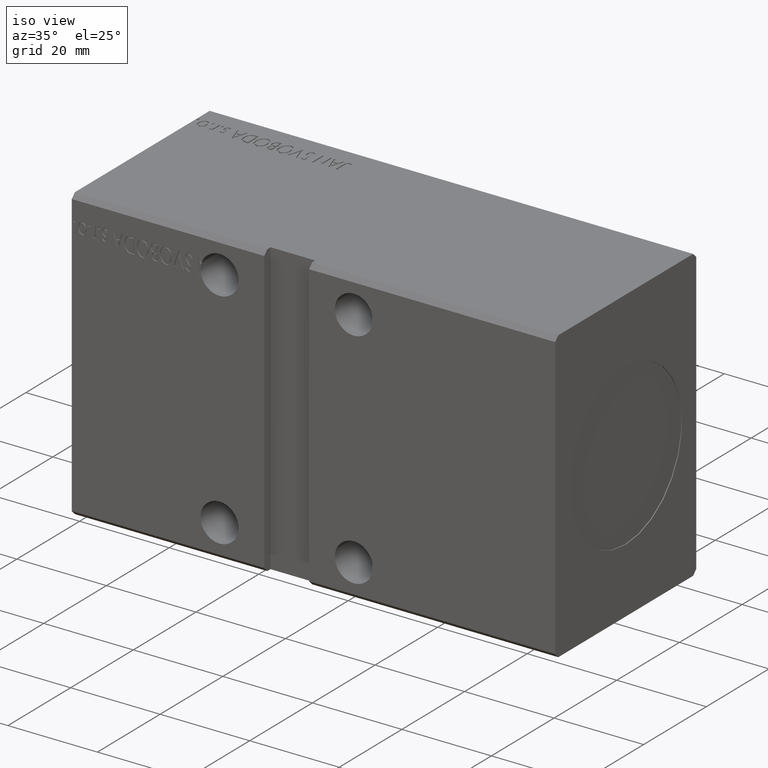
[diagram: clean part render]
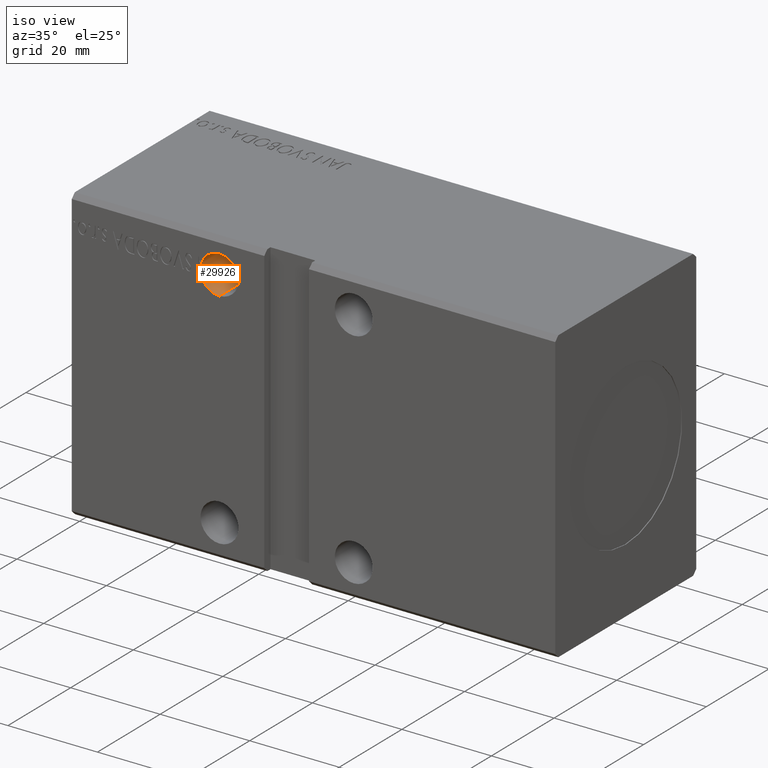
[diagram: same view with one face highlighted and labeled with its STEP entity id]
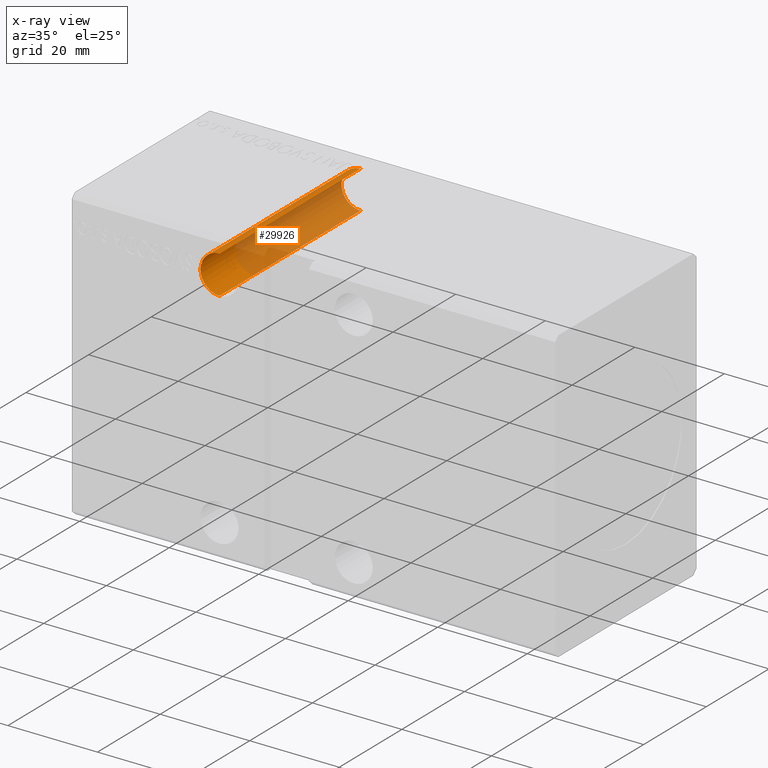
[diagram: x-ray of the same camera — body ghosted, the highlighted face saturated]
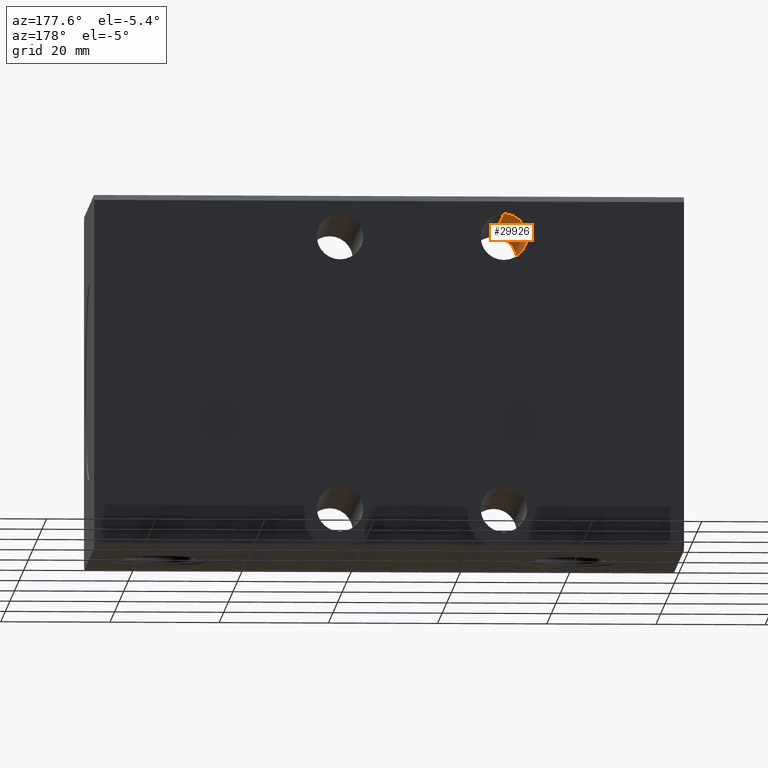
[diagram: same view with one face highlighted and labeled with its STEP entity id]
A machine part, iso view. The second image highlights one B-rep face of the part: STEP entity #29926.
The next image is the same camera in x-ray: the body ghosted, the highlighted face saturated — about 66% of this face is hidden behind the body in this view.
A second angle (auxiliary view) of the same face is appended — the face is thin or edge-on in the first view.
In plain terms, the highlighted cylindrical surface (edge-blend (fillet) strip) has radius 4.25 mm, axis along (-0, -1, -0).
Its self-contained STEP definition (entity closure, byte-faithful):
#209 = ORIENTED_EDGE ( 'NONE', *, *, #22713, .F. ) ;
#1056 = CIRCLE ( 'NONE', #31526, 4.250000000000003553 ) ;
#1215 = CARTESIAN_POINT ( 'NONE',  ( 32.99999999999998579, -22.29999999999999361, 25.00000000000000000 ) ) ;
#1845 = CARTESIAN_POINT ( 'NONE',  ( 28.88747877458902735, -22.50000000000000000, 26.07222626835214285 ) ) ;
#3090 = ORIENTED_EDGE ( 'NONE', *, *, #30625, .T. ) ;
#3674 = DIRECTION ( 'NONE',  ( 0.000000000000000000, 1.000000000000000000, 0.000000000000000000 ) ) ;
#3719 = DIRECTION ( 'NONE',  ( 0.000000000000000000, 0.000000000000000000, 1.000000000000000000 ) ) ;
#3758 = CARTESIAN_POINT ( 'NONE',  ( 32.99999999999998579, 22.50000000000001421, 20.75000000000000000 ) ) ;
#4377 = CARTESIAN_POINT ( 'NONE',  ( 32.99999999999998579, -22.50000000000001421, 25.00000000000000000 ) ) ;
#4901 = VERTEX_POINT ( 'NONE', #1845 ) ;
#5609 = DIRECTION ( 'NONE',  ( -0.000000000000000000, -1.000000000000000000, -5.507058653894626469E-17 ) ) ;
#5859 = EDGE_CURVE ( 'NONE', #18098, #4901, #37529, .T. ) ;
#6178 = CARTESIAN_POINT ( 'NONE',  ( 32.99999999999998579, -22.50000000000001421, 29.25000000000000355 ) ) ;
#7448 = EDGE_CURVE ( 'NONE', #39820, #15143, #18950, .T. ) ;
#8329 = ORIENTED_EDGE ( 'NONE', *, *, #16233, .T. ) ;
#8781 = CARTESIAN_POINT ( 'NONE',  ( 32.99999999999998579, -22.50000000000001421, 20.74999999999999645 ) ) ;
#8820 = AXIS2_PLACEMENT_3D ( 'NONE', #26900, #39300, #30146 ) ;
#8869 = LINE ( 'NONE', #36285, #13302 ) ;
#8936 = ORIENTED_EDGE ( 'NONE', *, *, #17589, .F. ) ;
#10496 = ORIENTED_EDGE ( 'NONE', *, *, #33320, .F. ) ;
#10658 = DIRECTION ( 'NONE',  ( -0.000000000000000000, 1.000000000000000000, 5.507058653894626469E-17 ) ) ;
#12017 = VECTOR ( 'NONE', #39427, 1000.000000000000000 ) ;
#12497 = CARTESIAN_POINT ( 'NONE',  ( 32.99999999999998579, 22.50000000000001421, 20.75000000000000000 ) ) ;
#12699 = AXIS2_PLACEMENT_3D ( 'NONE', #4377, #10658, #23051 ) ;
#13302 = VECTOR ( 'NONE', #5609, 1000.000000000000000 ) ;
#14146 = CARTESIAN_POINT ( 'NONE',  ( 29.00726110345451403, -22.29999999999999361, 26.45620606509273287 ) ) ;
#14652 = CARTESIAN_POINT ( 'NONE',  ( 32.99999999999998579, 22.50000000000001421, 29.25000000000000711 ) ) ;
#15143 = VERTEX_POINT ( 'NONE', #14146 ) ;
#15318 = CIRCLE ( 'NONE', #8820, 4.250000000000003553 ) ;
#15341 = DIRECTION ( 'NONE',  ( -0.000000000000000000, -1.000000000000000000, -5.507058653894626469E-17 ) ) ;
#16233 = EDGE_CURVE ( 'NONE', #39021, #4901, #8869, .T. ) ;
#17185 = ORIENTED_EDGE ( 'NONE', *, *, #5859, .F. ) ;
#17589 = EDGE_CURVE ( 'NONE', #39820, #39079, #19198, .T. ) ;
#18098 = VERTEX_POINT ( 'NONE', #8781 ) ;
#18950 = LINE ( 'NONE', #31323, #36896 ) ;
#19157 = CARTESIAN_POINT ( 'NONE',  ( 32.99999999999998579, -22.50000000000001421, 25.00000000000000000 ) ) ;
#19198 = CIRCLE ( 'NONE', #12699, 4.250000000000003553 ) ;
#19491 = VERTEX_POINT ( 'NONE', #3758 ) ;
#20229 = DIRECTION ( 'NONE',  ( 0.000000000000000000, 0.000000000000000000, -1.000000000000000000 ) ) ;
#20438 = AXIS2_PLACEMENT_3D ( 'NONE', #29359, #23277, #20229 ) ;
#22483 = CARTESIAN_POINT ( 'NONE',  ( 32.99999999999998579, 22.50000000000001421, 29.25000000000000711 ) ) ;
#22713 = EDGE_CURVE ( 'NONE', #19491, #18098, #27937, .T. ) ;
#23051 = DIRECTION ( 'NONE',  ( 0.000000000000000000, 0.000000000000000000, 1.000000000000000000 ) ) ;
#23074 = CYLINDRICAL_SURFACE ( 'NONE', #20438, 4.250000000000003553 ) ;
#23277 = DIRECTION ( 'NONE',  ( -0.000000000000000000, -1.000000000000000000, -5.507058653894626469E-17 ) ) ;
#24404 = LINE ( 'NONE', #14652, #12017 ) ;
#25168 = ORIENTED_EDGE ( 'NONE', *, *, #7448, .T. ) ;
#25625 = DIRECTION ( 'NONE',  ( 0.000000000000000000, 1.000000000000000000, 5.507058653894626469E-17 ) ) ;
#25985 = DIRECTION ( 'NONE',  ( 0.000000000000000000, 0.000000000000000000, 1.000000000000000000 ) ) ;
#26900 = CARTESIAN_POINT ( 'NONE',  ( 32.99999999999998579, 22.50000000000001421, 25.00000000000000355 ) ) ;
#27733 = VERTEX_POINT ( 'NONE', #22483 ) ;
#27937 = LINE ( 'NONE', #12497, #30117 ) ;
#29359 = CARTESIAN_POINT ( 'NONE',  ( 32.99999999999998579, 22.50000000000001421, 25.00000000000000355 ) ) ;
#29600 = CARTESIAN_POINT ( 'NONE',  ( 29.00726110345451048, -22.50000000000000000, 26.45620606509273287 ) ) ;
#29926 = ADVANCED_FACE ( 'NONE', ( #38515 ), #23074, .F. ) ;
#30117 = VECTOR ( 'NONE', #15341, 1000.000000000000000 ) ;
#30141 = CARTESIAN_POINT ( 'NONE',  ( 28.88747877458902735, -22.29999999999999361, 26.07222626835214996 ) ) ;
#30146 = DIRECTION ( 'NONE',  ( 0.000000000000000000, 0.000000000000000000, -1.000000000000000000 ) ) ;
#30625 = EDGE_CURVE ( 'NONE', #27733, #39079, #24404, .T. ) ;
#31323 = CARTESIAN_POINT ( 'NONE',  ( 29.00726110345451048, 22.50000000000001421, 26.45620606509273642 ) ) ;
#31526 = AXIS2_PLACEMENT_3D ( 'NONE', #1215, #3674, #25985 ) ;
#31533 = DIRECTION ( 'NONE',  ( -0.000000000000000000, 1.000000000000000000, 5.507058653894626469E-17 ) ) ;
#32964 = AXIS2_PLACEMENT_3D ( 'NONE', #19157, #31533, #3719 ) ;
#33320 = EDGE_CURVE ( 'NONE', #27733, #19491, #15318, .T. ) ;
#33511 = EDGE_CURVE ( 'NONE', #39021, #15143, #1056, .T. ) ;
#34556 = EDGE_LOOP ( 'NONE', ( #10496, #3090, #8936, #25168, #37376, #8329, #17185, #209 ) ) ;
#36285 = CARTESIAN_POINT ( 'NONE',  ( 28.88747877458902735, 22.50000000000001421, 26.07222626835214641 ) ) ;
#36896 = VECTOR ( 'NONE', #25625, 1000.000000000000000 ) ;
#37376 = ORIENTED_EDGE ( 'NONE', *, *, #33511, .F. ) ;
#37529 = CIRCLE ( 'NONE', #32964, 4.250000000000003553 ) ;
#38515 = FACE_OUTER_BOUND ( 'NONE', #34556, .T. ) ;
#39021 = VERTEX_POINT ( 'NONE', #30141 ) ;
#39079 = VERTEX_POINT ( 'NONE', #6178 ) ;
#39300 = DIRECTION ( 'NONE',  ( 0.000000000000000000, -1.000000000000000000, -5.507058653894625853E-17 ) ) ;
#39427 = DIRECTION ( 'NONE',  ( -0.000000000000000000, -1.000000000000000000, -5.507058653894626469E-17 ) ) ;
#39820 = VERTEX_POINT ( 'NONE', #29600 ) ;